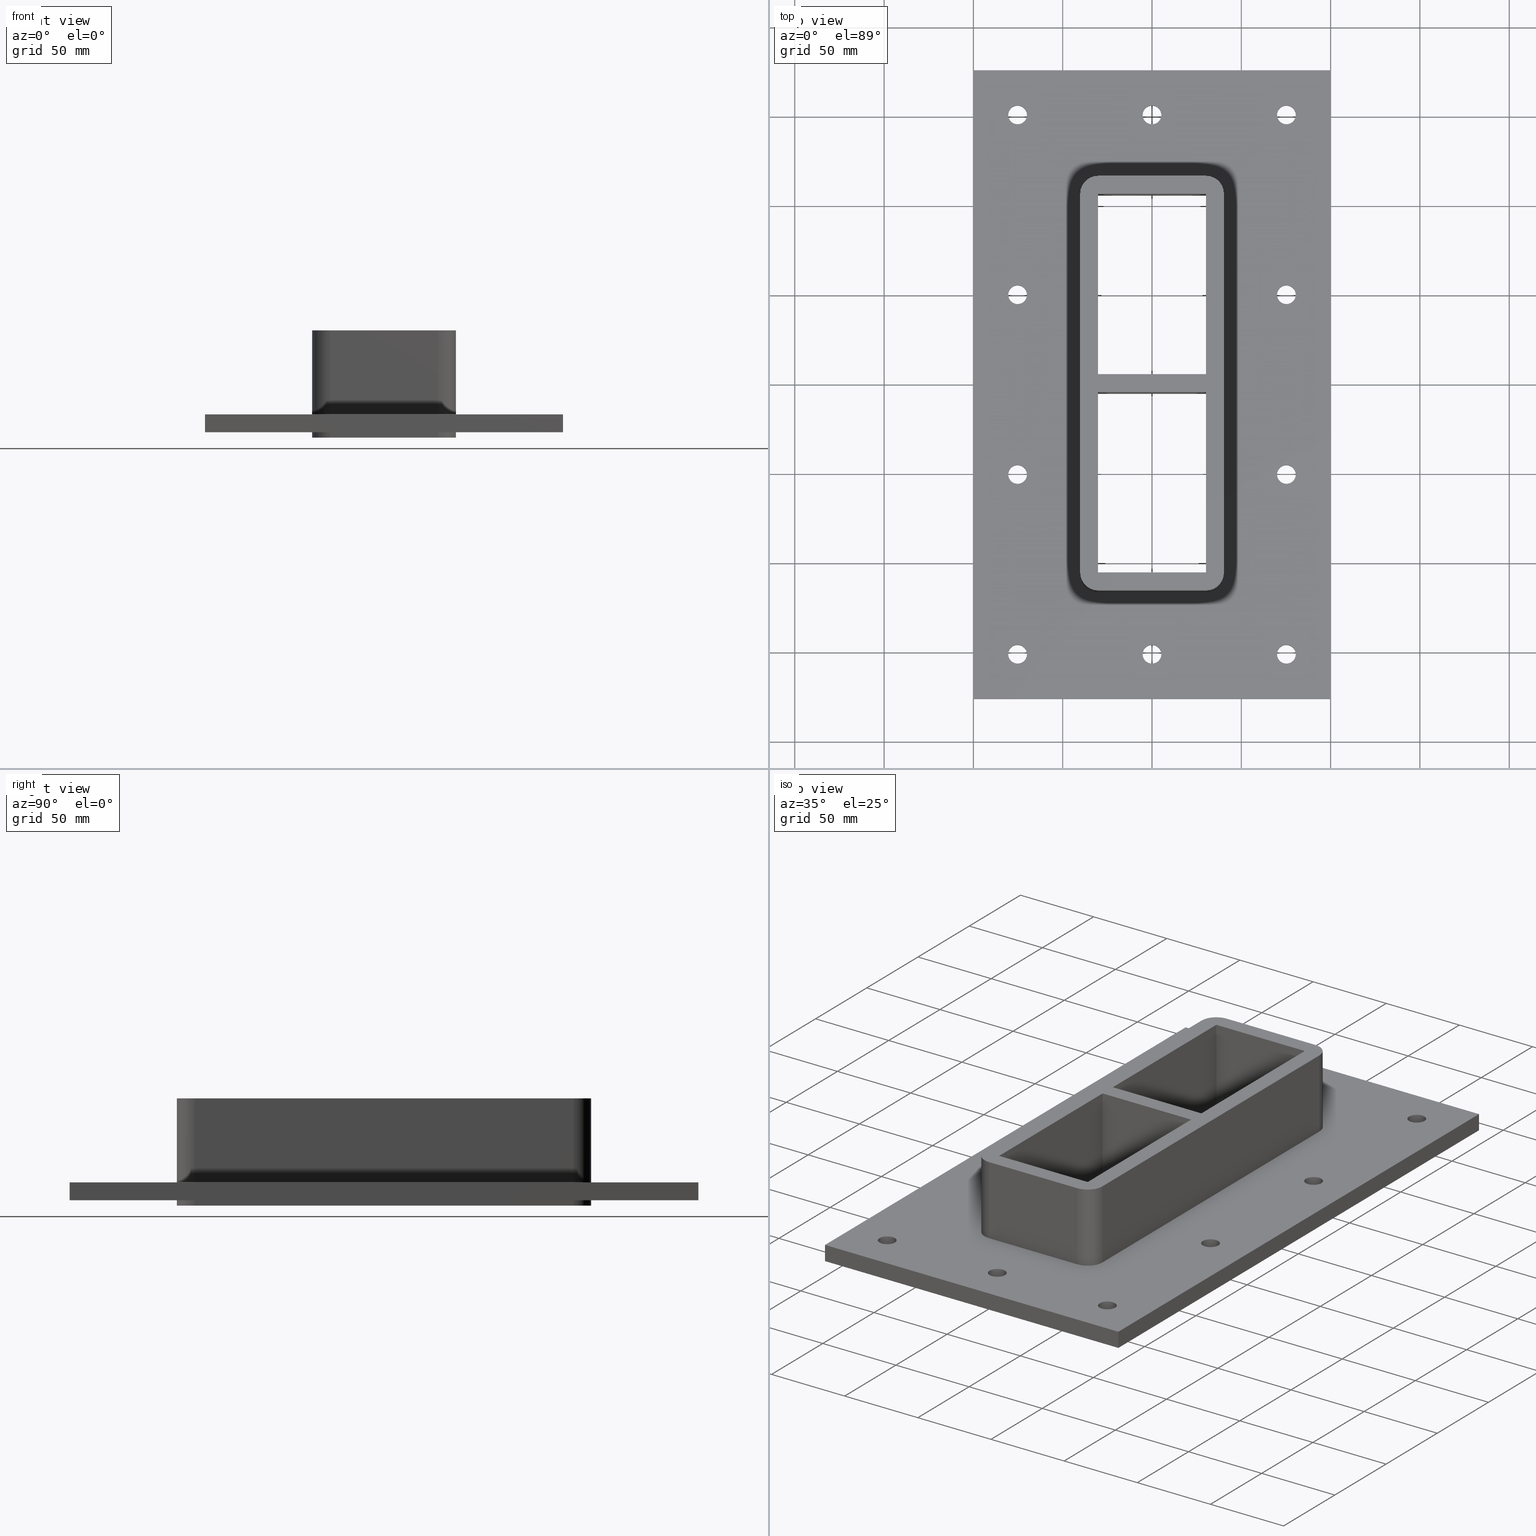
[diagram: canonical four-view strip — front | top / right | iso, engineering-drawing reading convention]
A machine part, canonical four-view strip (front | top / right | iso — engineering-drawing reading convention). The complete STEP part file that produces these views, byte-faithful:
ISO-10303-21;
HEADER;
/****************************************************************
 * Generated by software with PDElib inside                    *
 * PDElib Version v51a, created Wed 11/30/2011                  *
 * ITI Transcendata (http://www.transcendata.com/)              *
 ****************************************************************/
FILE_DESCRIPTION((''),'2;1');
FILE_NAME('C:\\Users\\se-milkar\\Desktop\\SFHM GENERATOR\\File dump\\SFHM1+1X1.stp','2017-01-17T17:20:58',(''),(''),'Autodesk Inventor 2013','Autodesk Inventor 2013','');
FILE_SCHEMA(('AUTOMOTIVE_DESIGN { 1 0 10303 214 1 1 1 1 }'));
ENDSEC;
DATA;
#5=APPLICATION_CONTEXT('automotive design');
#6=APPLICATION_PROTOCOL_DEFINITION('International Standard','automotive_design',2001,#5);
#7=PRODUCT_CONTEXT('',#5,'mechanical');
#8=PRODUCT('RTD-FRAME GENERATOR SF-LABB','RTD-FRAME GENERATOR SF-LABB',$,(#7));
#9=PRODUCT_RELATED_PRODUCT_CATEGORY('part',$,(#8));
#10=PRODUCT_DEFINITION_FORMATION('',$,#8);
#11=PRODUCT_DEFINITION_CONTEXT('part definition',#5,'design');
#12=PRODUCT_DEFINITION('',$,#10,#11);
#18=(NAMED_UNIT(*)PLANE_ANGLE_UNIT()SI_UNIT($,.RADIAN.));
#19=DIMENSIONAL_EXPONENTS(0.0,0.0,0.0,0.0,0.0,0.0,0.0);
#20=PLANE_ANGLE_MEASURE_WITH_UNIT(PLANE_ANGLE_MEASURE(0.0174532925),#18);
#24=(CONVERSION_BASED_UNIT('DEGREE',#20)NAMED_UNIT(#19)PLANE_ANGLE_UNIT());
#28=(NAMED_UNIT(*)SI_UNIT($,.STERADIAN.)SOLID_ANGLE_UNIT());
#32=(LENGTH_UNIT()NAMED_UNIT(*)SI_UNIT(.MILLI.,.METRE.));
#34=UNCERTAINTY_MEASURE_WITH_UNIT(LENGTH_MEASURE(0.01),#32,'DISTANCE_ACCURACY_VALUE','');
#36=(GEOMETRIC_REPRESENTATION_CONTEXT(3)GLOBAL_UNCERTAINTY_ASSIGNED_CONTEXT((#34))GLOBAL_UNIT_ASSIGNED_CONTEXT((#24,#28,#32))REPRESENTATION_CONTEXT('None','None'));
#37=AXIS2_PLACEMENT_3D('',#38,#39,#40);
#38=CARTESIAN_POINT('',(0.0,0.0,0.0));
#39=DIRECTION('',(0.0,0.0,1.0));
#40=DIRECTION('',(1.0,0.0,0.0));
#41=SHAPE_REPRESENTATION('',(#37),#36);
#42=PRODUCT_DEFINITION_SHAPE('','',#12);
#43=SHAPE_DEFINITION_REPRESENTATION(#42,#41);
#49=(NAMED_UNIT(*)PLANE_ANGLE_UNIT()SI_UNIT($,.RADIAN.));
#50=DIMENSIONAL_EXPONENTS(0.0,0.0,0.0,0.0,0.0,0.0,0.0);
#51=PLANE_ANGLE_MEASURE_WITH_UNIT(PLANE_ANGLE_MEASURE(0.0174532925),#49);
#55=(CONVERSION_BASED_UNIT('DEGREE',#51)NAMED_UNIT(#50)PLANE_ANGLE_UNIT());
#59=(NAMED_UNIT(*)SI_UNIT($,.STERADIAN.)SOLID_ANGLE_UNIT());
#63=(LENGTH_UNIT()NAMED_UNIT(*)SI_UNIT(.MILLI.,.METRE.));
#65=UNCERTAINTY_MEASURE_WITH_UNIT(LENGTH_MEASURE(0.000001),#63,'DISTANCE_ACCURACY_VALUE','');
#67=(GEOMETRIC_REPRESENTATION_CONTEXT(3)GLOBAL_UNCERTAINTY_ASSIGNED_CONTEXT((#65))GLOBAL_UNIT_ASSIGNED_CONTEXT((#55,#59,#63))REPRESENTATION_CONTEXT('','3D'));
#68=CARTESIAN_POINT('',(1.776357E-014,-151.0,-426.51709366032583));
#69=DIRECTION('',(0.0,0.0,1.0));
#70=DIRECTION('',(1.0,0.0,0.0));
#71=AXIS2_PLACEMENT_3D('',#68,#69,#70);
#72=CYLINDRICAL_SURFACE('',#71,5.25);
#73=CARTESIAN_POINT('',(-5.249999999999986,-151.0,-27.000000000000028));
#74=VERTEX_POINT('',#73);
#75=CARTESIAN_POINT('',(1.776357E-014,-151.0,-27.000000000000028));
#76=DIRECTION('',(0.0,0.0,1.0));
#77=DIRECTION('',(1.0,0.0,0.0));
#78=AXIS2_PLACEMENT_3D('',#75,#76,#77);
#79=CIRCLE('',#78,5.25);
#80=EDGE_CURVE('',#74,#74,#79,.T.);
#81=ORIENTED_EDGE('',*,*,#80,.F.);
#82=EDGE_LOOP('',(#81));
#83=FACE_OUTER_BOUND('',#82,.T.);
#84=CARTESIAN_POINT('',(5.250000000000021,-151.0,-17.0));
#85=VERTEX_POINT('',#84);
#86=CARTESIAN_POINT('',(1.776357E-014,-151.0,-17.000000000000028));
#87=DIRECTION('',(0.0,0.0,-1.0));
#88=DIRECTION('',(1.0,0.0,0.0));
#89=AXIS2_PLACEMENT_3D('',#86,#87,#88);
#90=CIRCLE('',#89,5.25);
#91=EDGE_CURVE('',#85,#85,#90,.T.);
#92=ORIENTED_EDGE('',*,*,#91,.F.);
#93=EDGE_LOOP('',(#92));
#94=FACE_BOUND('',#93,.T.);
#95=ADVANCED_FACE('',(#83,#94),#72,.F.);
#96=CARTESIAN_POINT('',(-8.881784E-015,151.00000000000003,-426.51709366032583));
#97=DIRECTION('',(0.0,0.0,1.0));
#98=DIRECTION('',(1.0,0.0,0.0));
#99=AXIS2_PLACEMENT_3D('',#96,#97,#98);
#100=CYLINDRICAL_SURFACE('',#99,5.25);
#101=CARTESIAN_POINT('',(-5.250000000000004,151.00000000000003,-27.000000000000028));
#102=VERTEX_POINT('',#101);
#103=CARTESIAN_POINT('',(-8.881784E-015,151.00000000000003,-27.000000000000028));
#104=DIRECTION('',(0.0,0.0,1.0));
#105=DIRECTION('',(1.0,0.0,0.0));
#106=AXIS2_PLACEMENT_3D('',#103,#104,#105);
#107=CIRCLE('',#106,5.25);
#108=EDGE_CURVE('',#102,#102,#107,.T.);
#109=ORIENTED_EDGE('',*,*,#108,.F.);
#110=EDGE_LOOP('',(#109));
#111=FACE_OUTER_BOUND('',#110,.T.);
#112=CARTESIAN_POINT('',(5.249999999999995,151.00000000000003,-17.0));
#113=VERTEX_POINT('',#112);
#114=CARTESIAN_POINT('',(-8.881784E-015,151.00000000000003,-17.000000000000028));
#115=DIRECTION('',(0.0,0.0,-1.0));
#116=DIRECTION('',(1.0,0.0,0.0));
#117=AXIS2_PLACEMENT_3D('',#114,#115,#116);
#118=CIRCLE('',#117,5.25);
#119=EDGE_CURVE('',#113,#113,#118,.T.);
#120=ORIENTED_EDGE('',*,*,#119,.F.);
#121=EDGE_LOOP('',(#120));
#122=FACE_BOUND('',#121,.T.);
#123=ADVANCED_FACE('',(#111,#122),#100,.F.);
#124=CARTESIAN_POINT('',(75.25,-50.333333333333329,-426.51709366032583));
#125=DIRECTION('',(0.0,0.0,1.0));
#126=DIRECTION('',(1.0,0.0,0.0));
#127=AXIS2_PLACEMENT_3D('',#124,#125,#126);
#128=CYLINDRICAL_SURFACE('',#127,5.25);
#129=CARTESIAN_POINT('',(70.0,-50.333333333333329,-27.000000000000028));
#130=VERTEX_POINT('',#129);
#131=CARTESIAN_POINT('',(75.25,-50.333333333333329,-27.000000000000028));
#132=DIRECTION('',(0.0,0.0,1.0));
#133=DIRECTION('',(1.0,0.0,0.0));
#134=AXIS2_PLACEMENT_3D('',#131,#132,#133);
#135=CIRCLE('',#134,5.25);
#136=EDGE_CURVE('',#130,#130,#135,.T.);
#137=ORIENTED_EDGE('',*,*,#136,.F.);
#138=EDGE_LOOP('',(#137));
#139=FACE_OUTER_BOUND('',#138,.T.);
#140=CARTESIAN_POINT('',(80.5,-50.333333333333329,-17.0));
#141=VERTEX_POINT('',#140);
#142=CARTESIAN_POINT('',(75.25,-50.333333333333329,-17.000000000000028));
#143=DIRECTION('',(0.0,0.0,-1.0));
#144=DIRECTION('',(1.0,0.0,0.0));
#145=AXIS2_PLACEMENT_3D('',#142,#143,#144);
#146=CIRCLE('',#145,5.25);
#147=EDGE_CURVE('',#141,#141,#146,.T.);
#148=ORIENTED_EDGE('',*,*,#147,.F.);
#149=EDGE_LOOP('',(#148));
#150=FACE_BOUND('',#149,.T.);
#151=ADVANCED_FACE('',(#139,#150),#128,.F.);
#152=CARTESIAN_POINT('',(75.249999999999986,50.33333333333335,-426.51709366032583));
#153=DIRECTION('',(0.0,0.0,1.0));
#154=DIRECTION('',(1.0,0.0,0.0));
#155=AXIS2_PLACEMENT_3D('',#152,#153,#154);
#156=CYLINDRICAL_SURFACE('',#155,5.25);
#157=CARTESIAN_POINT('',(69.999999999999986,50.33333333333335,-27.000000000000028));
#158=VERTEX_POINT('',#157);
#159=CARTESIAN_POINT('',(75.249999999999986,50.33333333333335,-27.000000000000028));
#160=DIRECTION('',(0.0,0.0,1.0));
#161=DIRECTION('',(1.0,0.0,0.0));
#162=AXIS2_PLACEMENT_3D('',#159,#160,#161);
#163=CIRCLE('',#162,5.25);
#164=EDGE_CURVE('',#158,#158,#163,.T.);
#165=ORIENTED_EDGE('',*,*,#164,.F.);
#166=EDGE_LOOP('',(#165));
#167=FACE_OUTER_BOUND('',#166,.T.);
#168=CARTESIAN_POINT('',(80.499999999999986,50.33333333333335,-17.0));
#169=VERTEX_POINT('',#168);
#170=CARTESIAN_POINT('',(75.249999999999986,50.33333333333335,-17.000000000000028));
#171=DIRECTION('',(0.0,0.0,-1.0));
#172=DIRECTION('',(1.0,0.0,0.0));
#173=AXIS2_PLACEMENT_3D('',#170,#171,#172);
#174=CIRCLE('',#173,5.25);
#175=EDGE_CURVE('',#169,#169,#174,.T.);
#176=ORIENTED_EDGE('',*,*,#175,.F.);
#177=EDGE_LOOP('',(#176));
#178=FACE_BOUND('',#177,.T.);
#179=ADVANCED_FACE('',(#167,#178),#156,.F.);
#180=CARTESIAN_POINT('',(-75.25,50.333333333333371,-426.51709366032583));
#181=DIRECTION('',(0.0,0.0,1.0));
#182=DIRECTION('',(1.0,0.0,0.0));
#183=AXIS2_PLACEMENT_3D('',#180,#181,#182);
#184=CYLINDRICAL_SURFACE('',#183,5.25);
#185=CARTESIAN_POINT('',(-80.499999999999986,50.333333333333371,-27.000000000000028));
#186=VERTEX_POINT('',#185);
#187=CARTESIAN_POINT('',(-75.25,50.333333333333371,-27.000000000000028));
#188=DIRECTION('',(0.0,0.0,1.0));
#189=DIRECTION('',(1.0,0.0,0.0));
#190=AXIS2_PLACEMENT_3D('',#187,#188,#189);
#191=CIRCLE('',#190,5.25);
#192=EDGE_CURVE('',#186,#186,#191,.T.);
#193=ORIENTED_EDGE('',*,*,#192,.F.);
#194=EDGE_LOOP('',(#193));
#195=FACE_OUTER_BOUND('',#194,.T.);
#196=CARTESIAN_POINT('',(-69.999999999999986,50.333333333333371,-17.0));
#197=VERTEX_POINT('',#196);
#198=CARTESIAN_POINT('',(-75.25,50.333333333333371,-17.000000000000028));
#199=DIRECTION('',(0.0,0.0,-1.0));
#200=DIRECTION('',(1.0,0.0,0.0));
#201=AXIS2_PLACEMENT_3D('',#198,#199,#200);
#202=CIRCLE('',#201,5.25);
#203=EDGE_CURVE('',#197,#197,#202,.T.);
#204=ORIENTED_EDGE('',*,*,#203,.F.);
#205=EDGE_LOOP('',(#204));
#206=FACE_BOUND('',#205,.T.);
#207=ADVANCED_FACE('',(#195,#206),#184,.F.);
#208=CARTESIAN_POINT('',(-75.249999999999972,-50.333333333333314,-426.51709366032583));
#209=DIRECTION('',(0.0,0.0,1.0));
#210=DIRECTION('',(1.0,0.0,0.0));
#211=AXIS2_PLACEMENT_3D('',#208,#209,#210);
#212=CYLINDRICAL_SURFACE('',#211,5.25);
#213=CARTESIAN_POINT('',(-80.499999999999972,-50.333333333333314,-27.000000000000028));
#214=VERTEX_POINT('',#213);
#215=CARTESIAN_POINT('',(-75.249999999999972,-50.333333333333314,-27.000000000000028));
#216=DIRECTION('',(0.0,0.0,1.0));
#217=DIRECTION('',(1.0,0.0,0.0));
#218=AXIS2_PLACEMENT_3D('',#215,#216,#217);
#219=CIRCLE('',#218,5.25);
#220=EDGE_CURVE('',#214,#214,#219,.T.);
#221=ORIENTED_EDGE('',*,*,#220,.F.);
#222=EDGE_LOOP('',(#221));
#223=FACE_OUTER_BOUND('',#222,.T.);
#224=CARTESIAN_POINT('',(-69.999999999999972,-50.333333333333314,-17.0));
#225=VERTEX_POINT('',#224);
#226=CARTESIAN_POINT('',(-75.249999999999972,-50.333333333333314,-17.000000000000028));
#227=DIRECTION('',(0.0,0.0,-1.0));
#228=DIRECTION('',(1.0,0.0,0.0));
#229=AXIS2_PLACEMENT_3D('',#226,#227,#228);
#230=CIRCLE('',#229,5.25);
#231=EDGE_CURVE('',#225,#225,#230,.T.);
#232=ORIENTED_EDGE('',*,*,#231,.F.);
#233=EDGE_LOOP('',(#232));
#234=FACE_BOUND('',#233,.T.);
#235=ADVANCED_FACE('',(#223,#234),#212,.F.);
#236=CARTESIAN_POINT('',(-75.250000000000014,151.00000000000003,-426.51709366032583));
#237=DIRECTION('',(0.0,0.0,1.0));
#238=DIRECTION('',(1.0,0.0,0.0));
#239=AXIS2_PLACEMENT_3D('',#236,#237,#238);
#240=CYLINDRICAL_SURFACE('',#239,5.25);
#241=CARTESIAN_POINT('',(-80.5,151.00000000000003,-27.000000000000028));
#242=VERTEX_POINT('',#241);
#243=CARTESIAN_POINT('',(-75.250000000000014,151.00000000000003,-27.000000000000028));
#244=DIRECTION('',(0.0,0.0,1.0));
#245=DIRECTION('',(1.0,0.0,0.0));
#246=AXIS2_PLACEMENT_3D('',#243,#244,#245);
#247=CIRCLE('',#246,5.25);
#248=EDGE_CURVE('',#242,#242,#247,.T.);
#249=ORIENTED_EDGE('',*,*,#248,.F.);
#250=EDGE_LOOP('',(#249));
#251=FACE_OUTER_BOUND('',#250,.T.);
#252=CARTESIAN_POINT('',(-70.000000000000014,151.00000000000003,-17.0));
#253=VERTEX_POINT('',#252);
#254=CARTESIAN_POINT('',(-75.250000000000014,151.00000000000003,-17.000000000000028));
#255=DIRECTION('',(0.0,0.0,-1.0));
#256=DIRECTION('',(1.0,0.0,0.0));
#257=AXIS2_PLACEMENT_3D('',#254,#255,#256);
#258=CIRCLE('',#257,5.25);
#259=EDGE_CURVE('',#253,#253,#258,.T.);
#260=ORIENTED_EDGE('',*,*,#259,.F.);
#261=EDGE_LOOP('',(#260));
#262=FACE_BOUND('',#261,.T.);
#263=ADVANCED_FACE('',(#251,#262),#240,.F.);
#264=CARTESIAN_POINT('',(75.249999999999972,151.00000000000003,-426.51709366032583));
#265=DIRECTION('',(0.0,0.0,1.0));
#266=DIRECTION('',(1.0,0.0,0.0));
#267=AXIS2_PLACEMENT_3D('',#264,#265,#266);
#268=CYLINDRICAL_SURFACE('',#267,5.25);
#269=CARTESIAN_POINT('',(69.999999999999972,151.00000000000003,-27.000000000000028));
#270=VERTEX_POINT('',#269);
#271=CARTESIAN_POINT('',(75.249999999999972,151.00000000000003,-27.000000000000028));
#272=DIRECTION('',(0.0,0.0,1.0));
#273=DIRECTION('',(1.0,0.0,0.0));
#274=AXIS2_PLACEMENT_3D('',#271,#272,#273);
#275=CIRCLE('',#274,5.25);
#276=EDGE_CURVE('',#270,#270,#275,.T.);
#277=ORIENTED_EDGE('',*,*,#276,.F.);
#278=EDGE_LOOP('',(#277));
#279=FACE_OUTER_BOUND('',#278,.T.);
#280=CARTESIAN_POINT('',(80.499999999999972,151.00000000000003,-17.0));
#281=VERTEX_POINT('',#280);
#282=CARTESIAN_POINT('',(75.249999999999972,151.00000000000003,-17.000000000000028));
#283=DIRECTION('',(0.0,0.0,-1.0));
#284=DIRECTION('',(1.0,0.0,0.0));
#285=AXIS2_PLACEMENT_3D('',#282,#283,#284);
#286=CIRCLE('',#285,5.25);
#287=EDGE_CURVE('',#281,#281,#286,.T.);
#288=ORIENTED_EDGE('',*,*,#287,.F.);
#289=EDGE_LOOP('',(#288));
#290=FACE_BOUND('',#289,.T.);
#291=ADVANCED_FACE('',(#279,#290),#268,.F.);
#292=CARTESIAN_POINT('',(75.250000000000028,-151.0,-426.51709366032583));
#293=DIRECTION('',(0.0,0.0,1.0));
#294=DIRECTION('',(1.0,0.0,0.0));
#295=AXIS2_PLACEMENT_3D('',#292,#293,#294);
#296=CYLINDRICAL_SURFACE('',#295,5.25);
#297=CARTESIAN_POINT('',(70.000000000000014,-151.0,-27.000000000000028));
#298=VERTEX_POINT('',#297);
#299=CARTESIAN_POINT('',(75.250000000000028,-151.0,-27.000000000000028));
#300=DIRECTION('',(0.0,0.0,1.0));
#301=DIRECTION('',(1.0,0.0,0.0));
#302=AXIS2_PLACEMENT_3D('',#299,#300,#301);
#303=CIRCLE('',#302,5.25);
#304=EDGE_CURVE('',#298,#298,#303,.T.);
#305=ORIENTED_EDGE('',*,*,#304,.F.);
#306=EDGE_LOOP('',(#305));
#307=FACE_OUTER_BOUND('',#306,.T.);
#308=CARTESIAN_POINT('',(80.500000000000028,-151.0,-17.0));
#309=VERTEX_POINT('',#308);
#310=CARTESIAN_POINT('',(75.250000000000028,-151.0,-17.000000000000028));
#311=DIRECTION('',(0.0,0.0,-1.0));
#312=DIRECTION('',(1.0,0.0,0.0));
#313=AXIS2_PLACEMENT_3D('',#310,#311,#312);
#314=CIRCLE('',#313,5.25);
#315=EDGE_CURVE('',#309,#309,#314,.T.);
#316=ORIENTED_EDGE('',*,*,#315,.F.);
#317=EDGE_LOOP('',(#316));
#318=FACE_BOUND('',#317,.T.);
#319=ADVANCED_FACE('',(#307,#318),#296,.F.);
#320=CARTESIAN_POINT('',(-75.249999999999957,-151.0,-426.51709366032583));
#321=DIRECTION('',(0.0,0.0,1.0));
#322=DIRECTION('',(1.0,0.0,0.0));
#323=AXIS2_PLACEMENT_3D('',#320,#321,#322);
#324=CYLINDRICAL_SURFACE('',#323,5.25);
#325=CARTESIAN_POINT('',(-80.499999999999957,-151.0,-27.000000000000028));
#326=VERTEX_POINT('',#325);
#327=CARTESIAN_POINT('',(-75.249999999999957,-151.0,-27.000000000000028));
#328=DIRECTION('',(0.0,0.0,1.0));
#329=DIRECTION('',(1.0,0.0,0.0));
#330=AXIS2_PLACEMENT_3D('',#327,#328,#329);
#331=CIRCLE('',#330,5.25);
#332=EDGE_CURVE('',#326,#326,#331,.T.);
#333=ORIENTED_EDGE('',*,*,#332,.F.);
#334=EDGE_LOOP('',(#333));
#335=FACE_OUTER_BOUND('',#334,.T.);
#336=CARTESIAN_POINT('',(-69.999999999999957,-151.0,-17.0));
#337=VERTEX_POINT('',#336);
#338=CARTESIAN_POINT('',(-75.249999999999957,-151.0,-17.000000000000028));
#339=DIRECTION('',(0.0,0.0,-1.0));
#340=DIRECTION('',(1.0,0.0,0.0));
#341=AXIS2_PLACEMENT_3D('',#338,#339,#340);
#342=CIRCLE('',#341,5.25);
#343=EDGE_CURVE('',#337,#337,#342,.T.);
#344=ORIENTED_EDGE('',*,*,#343,.F.);
#345=EDGE_LOOP('',(#344));
#346=FACE_BOUND('',#345,.T.);
#347=ADVANCED_FACE('',(#335,#346),#324,.F.);
#348=CARTESIAN_POINT('',(-100.25000000000004,176.0,-27.0));
#349=DIRECTION('',(-1.0,0.0,0.0));
#350=DIRECTION('',(0.0,-1.0,0.0));
#351=AXIS2_PLACEMENT_3D('',#348,#349,#350);
#352=PLANE('',#351);
#353=CARTESIAN_POINT('',(-100.24999999999997,-176.0,-27.0));
#354=VERTEX_POINT('',#353);
#355=CARTESIAN_POINT('',(-100.25000000000004,175.99999999999997,-27.0));
#356=VERTEX_POINT('',#355);
#357=CARTESIAN_POINT('',(-100.24999999999997,-176.0,-27.0));
#358=DIRECTION('',(0.0,1.0,0.0));
#359=VECTOR('',#358,352.0);
#360=LINE('',#357,#359);
#361=EDGE_CURVE('',#354,#356,#360,.T.);
#362=ORIENTED_EDGE('',*,*,#361,.F.);
#363=CARTESIAN_POINT('',(-100.24999999999994,-176.0,-17.0));
#364=VERTEX_POINT('',#363);
#365=CARTESIAN_POINT('',(-100.24999999999997,-176.0,-27.0));
#366=DIRECTION('',(0.0,0.0,1.0));
#367=VECTOR('',#366,10.0);
#368=LINE('',#365,#367);
#369=EDGE_CURVE('',#354,#364,#368,.T.);
#370=ORIENTED_EDGE('',*,*,#369,.T.);
#371=CARTESIAN_POINT('',(-100.25000000000003,176.0,-17.0));
#372=VERTEX_POINT('',#371);
#373=CARTESIAN_POINT('',(-100.25000000000004,176.0,-17.0));
#374=DIRECTION('',(0.0,-1.0,0.0));
#375=VECTOR('',#374,352.0);
#376=LINE('',#373,#375);
#377=EDGE_CURVE('',#372,#364,#376,.T.);
#378=ORIENTED_EDGE('',*,*,#377,.F.);
#379=CARTESIAN_POINT('',(-100.25000000000004,175.99999999999997,-27.0));
#380=DIRECTION('',(0.0,0.0,1.0));
#381=VECTOR('',#380,10.0);
#382=LINE('',#379,#381);
#383=EDGE_CURVE('',#356,#372,#382,.T.);
#384=ORIENTED_EDGE('',*,*,#383,.F.);
#385=EDGE_LOOP('',(#362,#370,#378,#384));
#386=FACE_OUTER_BOUND('',#385,.T.);
#387=ADVANCED_FACE('',(#386),#352,.T.);
#388=CARTESIAN_POINT('',(100.24999999999997,176.00000000000006,-27.0));
#389=DIRECTION('',(0.0,1.0,0.0));
#390=DIRECTION('',(-1.0,0.0,0.0));
#391=AXIS2_PLACEMENT_3D('',#388,#389,#390);
#392=PLANE('',#391);
#393=CARTESIAN_POINT('',(100.24999999999997,176.00000000000006,-27.0));
#394=VERTEX_POINT('',#393);
#395=CARTESIAN_POINT('',(-100.25000000000004,175.99999999999997,-27.0));
#396=DIRECTION('',(1.0,0.0,0.0));
#397=VECTOR('',#396,200.5);
#398=LINE('',#395,#397);
#399=EDGE_CURVE('',#356,#394,#398,.T.);
#400=ORIENTED_EDGE('',*,*,#399,.F.);
#401=ORIENTED_EDGE('',*,*,#383,.T.);
#402=CARTESIAN_POINT('',(100.24999999999997,176.0,-17.0));
#403=VERTEX_POINT('',#402);
#404=CARTESIAN_POINT('',(100.24999999999996,176.00000000000006,-17.0));
#405=DIRECTION('',(-1.0,0.0,0.0));
#406=VECTOR('',#405,200.5);
#407=LINE('',#404,#406);
#408=EDGE_CURVE('',#403,#372,#407,.T.);
#409=ORIENTED_EDGE('',*,*,#408,.F.);
#410=CARTESIAN_POINT('',(100.24999999999997,176.00000000000006,-27.0));
#411=DIRECTION('',(0.0,0.0,1.0));
#412=VECTOR('',#411,10.0);
#413=LINE('',#410,#412);
#414=EDGE_CURVE('',#394,#403,#413,.T.);
#415=ORIENTED_EDGE('',*,*,#414,.F.);
#416=EDGE_LOOP('',(#400,#401,#409,#415));
#417=FACE_OUTER_BOUND('',#416,.T.);
#418=ADVANCED_FACE('',(#417),#392,.T.);
#419=CARTESIAN_POINT('',(100.25000000000003,-175.99999999999997,-27.0));
#420=DIRECTION('',(1.0,0.0,0.0));
#421=DIRECTION('',(0.0,1.0,0.0));
#422=AXIS2_PLACEMENT_3D('',#419,#420,#421);
#423=PLANE('',#422);
#424=CARTESIAN_POINT('',(100.25000000000003,-176.0,-27.0));
#425=VERTEX_POINT('',#424);
#426=CARTESIAN_POINT('',(100.24999999999997,176.00000000000006,-27.0));
#427=DIRECTION('',(0.0,-1.0,0.0));
#428=VECTOR('',#427,352.0);
#429=LINE('',#426,#428);
#430=EDGE_CURVE('',#394,#425,#429,.T.);
#431=ORIENTED_EDGE('',*,*,#430,.F.);
#432=ORIENTED_EDGE('',*,*,#414,.T.);
#433=CARTESIAN_POINT('',(100.25000000000003,-176.0,-17.0));
#434=VERTEX_POINT('',#433);
#435=CARTESIAN_POINT('',(100.25000000000003,-175.99999999999994,-17.0));
#436=DIRECTION('',(0.0,1.0,0.0));
#437=VECTOR('',#436,352.0);
#438=LINE('',#435,#437);
#439=EDGE_CURVE('',#434,#403,#438,.T.);
#440=ORIENTED_EDGE('',*,*,#439,.F.);
#441=CARTESIAN_POINT('',(100.25000000000003,-176.0,-27.0));
#442=DIRECTION('',(0.0,0.0,1.0));
#443=VECTOR('',#442,10.0);
#444=LINE('',#441,#443);
#445=EDGE_CURVE('',#425,#434,#444,.T.);
#446=ORIENTED_EDGE('',*,*,#445,.F.);
#447=EDGE_LOOP('',(#431,#432,#440,#446));
#448=FACE_OUTER_BOUND('',#447,.T.);
#449=ADVANCED_FACE('',(#448),#423,.T.);
#450=CARTESIAN_POINT('',(-100.24999999999994,-176.0,-27.0));
#451=DIRECTION('',(0.0,-1.0,0.0));
#452=DIRECTION('',(1.0,0.0,0.0));
#453=AXIS2_PLACEMENT_3D('',#450,#451,#452);
#454=PLANE('',#453);
#455=CARTESIAN_POINT('',(100.25000000000003,-176.0,-27.0));
#456=DIRECTION('',(-1.0,0.0,0.0));
#457=VECTOR('',#456,200.49999999999997);
#458=LINE('',#455,#457);
#459=EDGE_CURVE('',#425,#354,#458,.T.);
#460=ORIENTED_EDGE('',*,*,#459,.F.);
#461=ORIENTED_EDGE('',*,*,#445,.T.);
#462=CARTESIAN_POINT('',(-100.24999999999994,-176.0,-17.0));
#463=DIRECTION('',(1.0,0.0,0.0));
#464=VECTOR('',#463,200.49999999999997);
#465=LINE('',#462,#464);
#466=EDGE_CURVE('',#364,#434,#465,.T.);
#467=ORIENTED_EDGE('',*,*,#466,.F.);
#468=ORIENTED_EDGE('',*,*,#369,.F.);
#469=EDGE_LOOP('',(#460,#461,#467,#468));
#470=FACE_OUTER_BOUND('',#469,.T.);
#471=ADVANCED_FACE('',(#470),#454,.T.);
#472=CARTESIAN_POINT('',(-3.858151E-015,1.517539E-014,-17.0));
#473=DIRECTION('',(0.0,0.0,1.0));
#474=DIRECTION('',(1.0,0.0,0.0));
#475=AXIS2_PLACEMENT_3D('',#472,#473,#474);
#476=PLANE('',#475);
#477=ORIENTED_EDGE('',*,*,#466,.T.);
#478=ORIENTED_EDGE('',*,*,#439,.T.);
#479=ORIENTED_EDGE('',*,*,#408,.T.);
#480=ORIENTED_EDGE('',*,*,#377,.T.);
#481=EDGE_LOOP('',(#477,#478,#479,#480));
#482=FACE_OUTER_BOUND('',#481,.T.);
#483=ORIENTED_EDGE('',*,*,#91,.T.);
#484=EDGE_LOOP('',(#483));
#485=FACE_BOUND('',#484,.T.);
#486=ORIENTED_EDGE('',*,*,#119,.T.);
#487=EDGE_LOOP('',(#486));
#488=FACE_BOUND('',#487,.T.);
#489=ORIENTED_EDGE('',*,*,#147,.T.);
#490=EDGE_LOOP('',(#489));
#491=FACE_BOUND('',#490,.T.);
#492=ORIENTED_EDGE('',*,*,#175,.T.);
#493=EDGE_LOOP('',(#492));
#494=FACE_BOUND('',#493,.T.);
#495=ORIENTED_EDGE('',*,*,#203,.T.);
#496=EDGE_LOOP('',(#495));
#497=FACE_BOUND('',#496,.T.);
#498=ORIENTED_EDGE('',*,*,#231,.T.);
#499=EDGE_LOOP('',(#498));
#500=FACE_BOUND('',#499,.T.);
#501=ORIENTED_EDGE('',*,*,#259,.T.);
#502=EDGE_LOOP('',(#501));
#503=FACE_BOUND('',#502,.T.);
#504=ORIENTED_EDGE('',*,*,#287,.T.);
#505=EDGE_LOOP('',(#504));
#506=FACE_BOUND('',#505,.T.);
#507=ORIENTED_EDGE('',*,*,#315,.T.);
#508=EDGE_LOOP('',(#507));
#509=FACE_BOUND('',#508,.T.);
#510=ORIENTED_EDGE('',*,*,#343,.T.);
#511=EDGE_LOOP('',(#510));
#512=FACE_BOUND('',#511,.T.);
#513=CARTESIAN_POINT('',(40.249999999999993,106.00000000000001,-17.0));
#514=VERTEX_POINT('',#513);
#515=CARTESIAN_POINT('',(30.249999999999989,116.00000000000001,-17.0));
#516=VERTEX_POINT('',#515);
#517=CARTESIAN_POINT('',(30.24999999999995,106.00000000000007,-17.0));
#518=DIRECTION('',(0.0,0.0,1.0));
#519=DIRECTION('',(0.707106781186547,0.707106781186547,0.0));
#520=AXIS2_PLACEMENT_3D('',#517,#518,#519);
#521=CIRCLE('',#520,9.999999999999998);
#522=EDGE_CURVE('',#514,#516,#521,.T.);
#523=ORIENTED_EDGE('',*,*,#522,.F.);
#524=CARTESIAN_POINT('',(40.250000000000014,-106.00000000000001,-17.0));
#525=VERTEX_POINT('',#524);
#526=CARTESIAN_POINT('',(40.249999999999986,-106.00000000000001,-17.0));
#527=DIRECTION('',(0.0,1.0,0.0));
#528=VECTOR('',#527,212.00000000000006);
#529=LINE('',#526,#528);
#530=EDGE_CURVE('',#525,#514,#529,.T.);
#531=ORIENTED_EDGE('',*,*,#530,.F.);
#532=CARTESIAN_POINT('',(30.250000000000018,-116.00000000000001,-17.0));
#533=VERTEX_POINT('',#532);
#534=CARTESIAN_POINT('',(30.249999999999986,-105.99999999999994,-17.0));
#535=DIRECTION('',(0.0,0.0,1.0));
#536=DIRECTION('',(0.707106781186547,-0.707106781186547,0.0));
#537=AXIS2_PLACEMENT_3D('',#534,#535,#536);
#538=CIRCLE('',#537,9.999999999999998);
#539=EDGE_CURVE('',#533,#525,#538,.T.);
#540=ORIENTED_EDGE('',*,*,#539,.F.);
#541=CARTESIAN_POINT('',(-30.249999999999989,-116.00000000000001,-17.0));
#542=VERTEX_POINT('',#541);
#543=CARTESIAN_POINT('',(-30.249999999999989,-115.99999999999994,-17.0));
#544=DIRECTION('',(1.0,0.0,0.0));
#545=VECTOR('',#544,60.500000000000014);
#546=LINE('',#543,#545);
#547=EDGE_CURVE('',#542,#533,#546,.T.);
#548=ORIENTED_EDGE('',*,*,#547,.F.);
#549=CARTESIAN_POINT('',(-40.25,-106.00000000000001,-17.0));
#550=VERTEX_POINT('',#549);
#551=CARTESIAN_POINT('',(-30.249999999999989,-105.99999999999994,-17.0));
#552=DIRECTION('',(0.0,0.0,1.0));
#553=DIRECTION('',(-0.707106781186547,-0.707106781186548,0.0));
#554=AXIS2_PLACEMENT_3D('',#551,#552,#553);
#555=CIRCLE('',#554,9.999999999999998);
#556=EDGE_CURVE('',#550,#542,#555,.T.);
#557=ORIENTED_EDGE('',*,*,#556,.F.);
#558=CARTESIAN_POINT('',(-40.250000000000021,106.00000000000001,-17.0));
#559=VERTEX_POINT('',#558);
#560=CARTESIAN_POINT('',(-40.250000000000057,106.00000000000001,-17.0));
#561=DIRECTION('',(0.0,-1.0,0.0));
#562=VECTOR('',#561,212.00000000000006);
#563=LINE('',#560,#562);
#564=EDGE_CURVE('',#559,#550,#563,.T.);
#565=ORIENTED_EDGE('',*,*,#564,.F.);
#566=CARTESIAN_POINT('',(-30.250000000000018,116.00000000000001,-17.0));
#567=VERTEX_POINT('',#566);
#568=CARTESIAN_POINT('',(-30.250000000000053,106.00000000000007,-17.0));
#569=DIRECTION('',(0.0,0.0,1.0));
#570=DIRECTION('',(-0.707106781186548,0.707106781186547,0.0));
#571=AXIS2_PLACEMENT_3D('',#568,#569,#570);
#572=CIRCLE('',#571,10.0);
#573=EDGE_CURVE('',#567,#559,#572,.T.);
#574=ORIENTED_EDGE('',*,*,#573,.F.);
#575=CARTESIAN_POINT('',(30.249999999999989,116.00000000000007,-17.0));
#576=DIRECTION('',(-1.0,0.0,0.0));
#577=VECTOR('',#576,60.500000000000014);
#578=LINE('',#575,#577);
#579=EDGE_CURVE('',#516,#567,#578,.T.);
#580=ORIENTED_EDGE('',*,*,#579,.F.);
#581=EDGE_LOOP('',(#523,#531,#540,#548,#557,#565,#574,#580));
#582=FACE_BOUND('',#581,.T.);
#583=ADVANCED_FACE('',(#482,#485,#488,#491,#494,#497,#500,#503,#506,#509,#512,#582),#476,.T.);
#584=CARTESIAN_POINT('',(-3.858151E-015,1.517539E-014,-27.0));
#585=DIRECTION('',(0.0,0.0,1.0));
#586=DIRECTION('',(1.0,0.0,0.0));
#587=AXIS2_PLACEMENT_3D('',#584,#585,#586);
#588=PLANE('',#587);
#589=ORIENTED_EDGE('',*,*,#459,.T.);
#590=ORIENTED_EDGE('',*,*,#361,.T.);
#591=ORIENTED_EDGE('',*,*,#399,.T.);
#592=ORIENTED_EDGE('',*,*,#430,.T.);
#593=EDGE_LOOP('',(#589,#590,#591,#592));
#594=FACE_OUTER_BOUND('',#593,.T.);
#595=ORIENTED_EDGE('',*,*,#80,.T.);
#596=EDGE_LOOP('',(#595));
#597=FACE_BOUND('',#596,.T.);
#598=ORIENTED_EDGE('',*,*,#108,.T.);
#599=EDGE_LOOP('',(#598));
#600=FACE_BOUND('',#599,.T.);
#601=ORIENTED_EDGE('',*,*,#136,.T.);
#602=EDGE_LOOP('',(#601));
#603=FACE_BOUND('',#602,.T.);
#604=ORIENTED_EDGE('',*,*,#164,.T.);
#605=EDGE_LOOP('',(#604));
#606=FACE_BOUND('',#605,.T.);
#607=ORIENTED_EDGE('',*,*,#192,.T.);
#608=EDGE_LOOP('',(#607));
#609=FACE_BOUND('',#608,.T.);
#610=ORIENTED_EDGE('',*,*,#220,.T.);
#611=EDGE_LOOP('',(#610));
#612=FACE_BOUND('',#611,.T.);
#613=ORIENTED_EDGE('',*,*,#248,.T.);
#614=EDGE_LOOP('',(#613));
#615=FACE_BOUND('',#614,.T.);
#616=ORIENTED_EDGE('',*,*,#276,.T.);
#617=EDGE_LOOP('',(#616));
#618=FACE_BOUND('',#617,.T.);
#619=ORIENTED_EDGE('',*,*,#304,.T.);
#620=EDGE_LOOP('',(#619));
#621=FACE_BOUND('',#620,.T.);
#622=ORIENTED_EDGE('',*,*,#332,.T.);
#623=EDGE_LOOP('',(#622));
#624=FACE_BOUND('',#623,.T.);
#625=CARTESIAN_POINT('',(30.249999999999989,116.00000000000001,-27.0));
#626=VERTEX_POINT('',#625);
#627=CARTESIAN_POINT('',(40.249999999999993,106.00000000000001,-27.0));
#628=VERTEX_POINT('',#627);
#629=CARTESIAN_POINT('',(30.24999999999995,106.00000000000007,-27.0));
#630=DIRECTION('',(0.0,0.0,-1.0));
#631=DIRECTION('',(0.707106781186547,0.707106781186547,0.0));
#632=AXIS2_PLACEMENT_3D('',#629,#630,#631);
#633=CIRCLE('',#632,9.999999999999998);
#634=EDGE_CURVE('',#626,#628,#633,.T.);
#635=ORIENTED_EDGE('',*,*,#634,.F.);
#636=CARTESIAN_POINT('',(-30.250000000000018,116.00000000000001,-27.0));
#637=VERTEX_POINT('',#636);
#638=CARTESIAN_POINT('',(-30.250000000000025,116.00000000000007,-27.0));
#639=DIRECTION('',(1.0,0.0,0.0));
#640=VECTOR('',#639,60.500000000000014);
#641=LINE('',#638,#640);
#642=EDGE_CURVE('',#637,#626,#641,.T.);
#643=ORIENTED_EDGE('',*,*,#642,.F.);
#644=CARTESIAN_POINT('',(-40.250000000000014,106.00000000000001,-27.0));
#645=VERTEX_POINT('',#644);
#646=CARTESIAN_POINT('',(-30.250000000000053,106.00000000000007,-27.0));
#647=DIRECTION('',(0.0,0.0,-1.0));
#648=DIRECTION('',(-0.707106781186548,0.707106781186547,0.0));
#649=AXIS2_PLACEMENT_3D('',#646,#647,#648);
#650=CIRCLE('',#649,10.0);
#651=EDGE_CURVE('',#645,#637,#650,.T.);
#652=ORIENTED_EDGE('',*,*,#651,.F.);
#653=CARTESIAN_POINT('',(-40.249999999999993,-106.00000000000001,-27.0));
#654=VERTEX_POINT('',#653);
#655=CARTESIAN_POINT('',(-40.249999999999993,-106.00000000000003,-27.0));
#656=DIRECTION('',(0.0,1.0,0.0));
#657=VECTOR('',#656,212.00000000000006);
#658=LINE('',#655,#657);
#659=EDGE_CURVE('',#654,#645,#658,.T.);
#660=ORIENTED_EDGE('',*,*,#659,.F.);
#661=CARTESIAN_POINT('',(-30.249999999999989,-116.00000000000001,-27.0));
#662=VERTEX_POINT('',#661);
#663=CARTESIAN_POINT('',(-30.249999999999989,-105.99999999999994,-27.0));
#664=DIRECTION('',(0.0,0.0,-1.0));
#665=DIRECTION('',(-0.707106781186547,-0.707106781186548,0.0));
#666=AXIS2_PLACEMENT_3D('',#663,#664,#665);
#667=CIRCLE('',#666,9.999999999999998);
#668=EDGE_CURVE('',#662,#654,#667,.T.);
#669=ORIENTED_EDGE('',*,*,#668,.F.);
#670=CARTESIAN_POINT('',(30.250000000000018,-116.00000000000001,-27.0));
#671=VERTEX_POINT('',#670);
#672=CARTESIAN_POINT('',(30.250000000000021,-115.99999999999994,-27.0));
#673=DIRECTION('',(-1.0,0.0,0.0));
#674=VECTOR('',#673,60.500000000000014);
#675=LINE('',#672,#674);
#676=EDGE_CURVE('',#671,#662,#675,.T.);
#677=ORIENTED_EDGE('',*,*,#676,.F.);
#678=CARTESIAN_POINT('',(40.250000000000014,-106.00000000000001,-27.0));
#679=VERTEX_POINT('',#678);
#680=CARTESIAN_POINT('',(30.249999999999986,-105.99999999999994,-27.0));
#681=DIRECTION('',(0.0,0.0,-1.0));
#682=DIRECTION('',(0.707106781186547,-0.707106781186547,0.0));
#683=AXIS2_PLACEMENT_3D('',#680,#681,#682);
#684=CIRCLE('',#683,9.999999999999998);
#685=EDGE_CURVE('',#679,#671,#684,.T.);
#686=ORIENTED_EDGE('',*,*,#685,.F.);
#687=CARTESIAN_POINT('',(40.24999999999995,106.00000000000003,-27.0));
#688=DIRECTION('',(0.0,-1.0,0.0));
#689=VECTOR('',#688,212.00000000000006);
#690=LINE('',#687,#689);
#691=EDGE_CURVE('',#628,#679,#690,.T.);
#692=ORIENTED_EDGE('',*,*,#691,.F.);
#693=EDGE_LOOP('',(#635,#643,#652,#660,#669,#677,#686,#692));
#694=FACE_BOUND('',#693,.T.);
#695=ADVANCED_FACE('',(#594,#597,#600,#603,#606,#609,#612,#615,#618,#621,#624,#694),#588,.F.);
#696=CARTESIAN_POINT('',(30.249999999999986,-105.99999999999994,0.0));
#697=DIRECTION('',(0.0,0.0,1.0));
#698=DIRECTION('',(0.707106781186547,-0.707106781186547,0.0));
#699=AXIS2_PLACEMENT_3D('',#696,#697,#698);
#700=CYLINDRICAL_SURFACE('',#699,10.0);
#701=ORIENTED_EDGE('',*,*,#685,.T.);
#702=CARTESIAN_POINT('',(30.249999999999986,-115.99999999999994,-30.0));
#703=VERTEX_POINT('',#702);
#704=CARTESIAN_POINT('',(30.249999999999986,-115.99999999999994,-27.0));
#705=DIRECTION('',(0.0,0.0,-1.0));
#706=VECTOR('',#705,3.0);
#707=LINE('',#704,#706);
#708=EDGE_CURVE('',#671,#703,#707,.T.);
#709=ORIENTED_EDGE('',*,*,#708,.T.);
#710=CARTESIAN_POINT('',(40.249999999999986,-105.99999999999994,-30.0));
#711=VERTEX_POINT('',#710);
#712=CARTESIAN_POINT('',(30.249999999999986,-105.99999999999994,-30.0));
#713=DIRECTION('',(0.0,0.0,1.0));
#714=DIRECTION('',(0.707106781186547,-0.707106781186547,0.0));
#715=AXIS2_PLACEMENT_3D('',#712,#713,#714);
#716=CIRCLE('',#715,9.999999999999998);
#717=EDGE_CURVE('',#703,#711,#716,.T.);
#718=ORIENTED_EDGE('',*,*,#717,.T.);
#719=CARTESIAN_POINT('',(40.249999999999986,-105.99999999999994,-30.0));
#720=DIRECTION('',(0.0,0.0,1.0));
#721=VECTOR('',#720,3.0);
#722=LINE('',#719,#721);
#723=EDGE_CURVE('',#711,#679,#722,.T.);
#724=ORIENTED_EDGE('',*,*,#723,.T.);
#725=EDGE_LOOP('',(#701,#709,#718,#724));
#726=FACE_OUTER_BOUND('',#725,.T.);
#727=ADVANCED_FACE('',(#726),#700,.T.);
#728=CARTESIAN_POINT('',(30.249999999999986,-105.99999999999994,0.0));
#729=DIRECTION('',(0.0,0.0,1.0));
#730=DIRECTION('',(0.707106781186547,-0.707106781186547,0.0));
#731=AXIS2_PLACEMENT_3D('',#728,#729,#730);
#732=CYLINDRICAL_SURFACE('',#731,10.0);
#733=ORIENTED_EDGE('',*,*,#539,.T.);
#734=CARTESIAN_POINT('',(40.249999999999986,-105.99999999999994,30.0));
#735=VERTEX_POINT('',#734);
#736=CARTESIAN_POINT('',(40.249999999999986,-105.99999999999994,-17.0));
#737=DIRECTION('',(0.0,0.0,1.0));
#738=VECTOR('',#737,47.0);
#739=LINE('',#736,#738);
#740=EDGE_CURVE('',#525,#735,#739,.T.);
#741=ORIENTED_EDGE('',*,*,#740,.T.);
#742=CARTESIAN_POINT('',(30.249999999999986,-115.99999999999994,30.0));
#743=VERTEX_POINT('',#742);
#744=CARTESIAN_POINT('',(30.249999999999986,-105.99999999999994,30.0));
#745=DIRECTION('',(0.0,0.0,-1.0));
#746=DIRECTION('',(0.707106781186547,-0.707106781186547,0.0));
#747=AXIS2_PLACEMENT_3D('',#744,#745,#746);
#748=CIRCLE('',#747,9.999999999999998);
#749=EDGE_CURVE('',#735,#743,#748,.T.);
#750=ORIENTED_EDGE('',*,*,#749,.T.);
#751=CARTESIAN_POINT('',(30.249999999999986,-115.99999999999994,30.0));
#752=DIRECTION('',(0.0,0.0,-1.0));
#753=VECTOR('',#752,47.0);
#754=LINE('',#751,#753);
#755=EDGE_CURVE('',#743,#533,#754,.T.);
#756=ORIENTED_EDGE('',*,*,#755,.T.);
#757=EDGE_LOOP('',(#733,#741,#750,#756));
#758=FACE_OUTER_BOUND('',#757,.T.);
#759=ADVANCED_FACE('',(#758),#732,.T.);
#760=CARTESIAN_POINT('',(-40.249999999999986,-115.99999999999994,0.0));
#761=DIRECTION('',(0.0,-1.0,0.0));
#762=DIRECTION('',(1.0,0.0,0.0));
#763=AXIS2_PLACEMENT_3D('',#760,#761,#762);
#764=PLANE('',#763);
#765=ORIENTED_EDGE('',*,*,#676,.T.);
#766=CARTESIAN_POINT('',(-30.249999999999989,-115.99999999999994,-30.0));
#767=VERTEX_POINT('',#766);
#768=CARTESIAN_POINT('',(-30.249999999999989,-115.99999999999994,-30.0));
#769=DIRECTION('',(0.0,0.0,1.0));
#770=VECTOR('',#769,3.0);
#771=LINE('',#768,#770);
#772=EDGE_CURVE('',#767,#662,#771,.T.);
#773=ORIENTED_EDGE('',*,*,#772,.F.);
#774=CARTESIAN_POINT('',(30.249999999999986,-115.99999999999994,-30.0));
#775=DIRECTION('',(-1.0,0.0,0.0));
#776=VECTOR('',#775,60.499999999999972);
#777=LINE('',#774,#776);
#778=EDGE_CURVE('',#703,#767,#777,.T.);
#779=ORIENTED_EDGE('',*,*,#778,.F.);
#780=ORIENTED_EDGE('',*,*,#708,.F.);
#781=EDGE_LOOP('',(#765,#773,#779,#780));
#782=FACE_OUTER_BOUND('',#781,.T.);
#783=ADVANCED_FACE('',(#782),#764,.T.);
#784=CARTESIAN_POINT('',(40.249999999999986,-115.99999999999994,0.0));
#785=DIRECTION('',(1.0,0.0,0.0));
#786=DIRECTION('',(0.0,1.0,0.0));
#787=AXIS2_PLACEMENT_3D('',#784,#785,#786);
#788=PLANE('',#787);
#789=ORIENTED_EDGE('',*,*,#530,.T.);
#790=CARTESIAN_POINT('',(40.24999999999995,106.00000000000009,30.0));
#791=VERTEX_POINT('',#790);
#792=CARTESIAN_POINT('',(40.24999999999995,106.00000000000007,30.0));
#793=DIRECTION('',(0.0,0.0,-1.0));
#794=VECTOR('',#793,47.0);
#795=LINE('',#792,#794);
#796=EDGE_CURVE('',#791,#514,#795,.T.);
#797=ORIENTED_EDGE('',*,*,#796,.F.);
#798=CARTESIAN_POINT('',(40.249999999999986,-105.99999999999994,30.0));
#799=DIRECTION('',(0.0,1.0,0.0));
#800=VECTOR('',#799,212.00000000000003);
#801=LINE('',#798,#800);
#802=EDGE_CURVE('',#735,#791,#801,.T.);
#803=ORIENTED_EDGE('',*,*,#802,.F.);
#804=ORIENTED_EDGE('',*,*,#740,.F.);
#805=EDGE_LOOP('',(#789,#797,#803,#804));
#806=FACE_OUTER_BOUND('',#805,.T.);
#807=ADVANCED_FACE('',(#806),#788,.T.);
#808=CARTESIAN_POINT('',(-30.249999999999989,-105.99999999999994,0.0));
#809=DIRECTION('',(0.0,0.0,-1.0));
#810=DIRECTION('',(-0.707106781186547,-0.707106781186548,0.0));
#811=AXIS2_PLACEMENT_3D('',#808,#809,#810);
#812=CYLINDRICAL_SURFACE('',#811,10.0);
#813=ORIENTED_EDGE('',*,*,#668,.T.);
#814=CARTESIAN_POINT('',(-40.249999999999986,-105.99999999999996,-30.0));
#815=VERTEX_POINT('',#814);
#816=CARTESIAN_POINT('',(-40.249999999999986,-105.99999999999994,-27.0));
#817=DIRECTION('',(0.0,0.0,-1.0));
#818=VECTOR('',#817,3.0);
#819=LINE('',#816,#818);
#820=EDGE_CURVE('',#654,#815,#819,.T.);
#821=ORIENTED_EDGE('',*,*,#820,.T.);
#822=CARTESIAN_POINT('',(-30.249999999999989,-105.99999999999994,-30.0));
#823=DIRECTION('',(0.0,0.0,1.0));
#824=DIRECTION('',(-0.707106781186547,-0.707106781186548,0.0));
#825=AXIS2_PLACEMENT_3D('',#822,#823,#824);
#826=CIRCLE('',#825,9.999999999999998);
#827=EDGE_CURVE('',#815,#767,#826,.T.);
#828=ORIENTED_EDGE('',*,*,#827,.T.);
#829=ORIENTED_EDGE('',*,*,#772,.T.);
#830=EDGE_LOOP('',(#813,#821,#828,#829));
#831=FACE_OUTER_BOUND('',#830,.T.);
#832=ADVANCED_FACE('',(#831),#812,.T.);
#833=CARTESIAN_POINT('',(30.24999999999995,106.00000000000007,0.0));
#834=DIRECTION('',(0.0,0.0,1.0));
#835=DIRECTION('',(0.707106781186547,0.707106781186547,0.0));
#836=AXIS2_PLACEMENT_3D('',#833,#834,#835);
#837=CYLINDRICAL_SURFACE('',#836,10.0);
#838=ORIENTED_EDGE('',*,*,#522,.T.);
#839=CARTESIAN_POINT('',(30.24999999999995,116.00000000000007,30.0));
#840=VERTEX_POINT('',#839);
#841=CARTESIAN_POINT('',(30.24999999999995,116.00000000000007,-17.0));
#842=DIRECTION('',(0.0,0.0,1.0));
#843=VECTOR('',#842,47.0);
#844=LINE('',#841,#843);
#845=EDGE_CURVE('',#516,#840,#844,.T.);
#846=ORIENTED_EDGE('',*,*,#845,.T.);
#847=CARTESIAN_POINT('',(30.24999999999995,106.00000000000007,30.0));
#848=DIRECTION('',(0.0,0.0,-1.0));
#849=DIRECTION('',(0.707106781186547,0.707106781186547,0.0));
#850=AXIS2_PLACEMENT_3D('',#847,#848,#849);
#851=CIRCLE('',#850,9.999999999999998);
#852=EDGE_CURVE('',#840,#791,#851,.T.);
#853=ORIENTED_EDGE('',*,*,#852,.T.);
#854=ORIENTED_EDGE('',*,*,#796,.T.);
#855=EDGE_LOOP('',(#838,#846,#853,#854));
#856=FACE_OUTER_BOUND('',#855,.T.);
#857=ADVANCED_FACE('',(#856),#837,.T.);
#858=CARTESIAN_POINT('',(-40.250000000000057,116.00000000000007,0.0));
#859=DIRECTION('',(-1.0,0.0,0.0));
#860=DIRECTION('',(0.0,-1.0,0.0));
#861=AXIS2_PLACEMENT_3D('',#858,#859,#860);
#862=PLANE('',#861);
#863=ORIENTED_EDGE('',*,*,#659,.T.);
#864=CARTESIAN_POINT('',(-40.250000000000057,106.00000000000007,-30.0));
#865=VERTEX_POINT('',#864);
#866=CARTESIAN_POINT('',(-40.250000000000057,106.00000000000007,-30.0));
#867=DIRECTION('',(0.0,0.0,1.0));
#868=VECTOR('',#867,3.0);
#869=LINE('',#866,#868);
#870=EDGE_CURVE('',#865,#645,#869,.T.);
#871=ORIENTED_EDGE('',*,*,#870,.F.);
#872=CARTESIAN_POINT('',(-40.249999999999986,-105.99999999999996,-30.0));
#873=DIRECTION('',(0.0,1.0,0.0));
#874=VECTOR('',#873,212.00000000000003);
#875=LINE('',#872,#874);
#876=EDGE_CURVE('',#815,#865,#875,.T.);
#877=ORIENTED_EDGE('',*,*,#876,.F.);
#878=ORIENTED_EDGE('',*,*,#820,.F.);
#879=EDGE_LOOP('',(#863,#871,#877,#878));
#880=FACE_OUTER_BOUND('',#879,.T.);
#881=ADVANCED_FACE('',(#880),#862,.T.);
#882=CARTESIAN_POINT('',(40.24999999999995,116.00000000000007,0.0));
#883=DIRECTION('',(0.0,1.0,0.0));
#884=DIRECTION('',(-1.0,0.0,0.0));
#885=AXIS2_PLACEMENT_3D('',#882,#883,#884);
#886=PLANE('',#885);
#887=ORIENTED_EDGE('',*,*,#579,.T.);
#888=CARTESIAN_POINT('',(-30.250000000000057,116.00000000000007,30.0));
#889=VERTEX_POINT('',#888);
#890=CARTESIAN_POINT('',(-30.250000000000053,116.00000000000007,30.0));
#891=DIRECTION('',(0.0,0.0,-1.0));
#892=VECTOR('',#891,47.0);
#893=LINE('',#890,#892);
#894=EDGE_CURVE('',#889,#567,#893,.T.);
#895=ORIENTED_EDGE('',*,*,#894,.F.);
#896=CARTESIAN_POINT('',(30.24999999999995,116.00000000000007,30.0));
#897=DIRECTION('',(-1.0,0.0,0.0));
#898=VECTOR('',#897,60.5);
#899=LINE('',#896,#898);
#900=EDGE_CURVE('',#840,#889,#899,.T.);
#901=ORIENTED_EDGE('',*,*,#900,.F.);
#902=ORIENTED_EDGE('',*,*,#845,.F.);
#903=EDGE_LOOP('',(#887,#895,#901,#902));
#904=FACE_OUTER_BOUND('',#903,.T.);
#905=ADVANCED_FACE('',(#904),#886,.T.);
#906=CARTESIAN_POINT('',(-30.250000000000053,106.00000000000007,0.0));
#907=DIRECTION('',(0.0,0.0,1.0));
#908=DIRECTION('',(-0.707106781186548,0.707106781186547,0.0));
#909=AXIS2_PLACEMENT_3D('',#906,#907,#908);
#910=CYLINDRICAL_SURFACE('',#909,10.0);
#911=ORIENTED_EDGE('',*,*,#651,.T.);
#912=CARTESIAN_POINT('',(-30.250000000000057,116.00000000000007,-30.0));
#913=VERTEX_POINT('',#912);
#914=CARTESIAN_POINT('',(-30.250000000000053,116.00000000000007,-27.0));
#915=DIRECTION('',(0.0,0.0,-1.0));
#916=VECTOR('',#915,3.0);
#917=LINE('',#914,#916);
#918=EDGE_CURVE('',#637,#913,#917,.T.);
#919=ORIENTED_EDGE('',*,*,#918,.T.);
#920=CARTESIAN_POINT('',(-30.250000000000053,106.00000000000007,-30.0));
#921=DIRECTION('',(0.0,0.0,1.0));
#922=DIRECTION('',(-0.707106781186548,0.707106781186547,0.0));
#923=AXIS2_PLACEMENT_3D('',#920,#921,#922);
#924=CIRCLE('',#923,10.0);
#925=EDGE_CURVE('',#913,#865,#924,.T.);
#926=ORIENTED_EDGE('',*,*,#925,.T.);
#927=ORIENTED_EDGE('',*,*,#870,.T.);
#928=EDGE_LOOP('',(#911,#919,#926,#927));
#929=FACE_OUTER_BOUND('',#928,.T.);
#930=ADVANCED_FACE('',(#929),#910,.T.);
#931=CARTESIAN_POINT('',(-2.728484E-014,6.923528E-014,-30.0));
#932=DIRECTION('',(0.0,0.0,1.0));
#933=DIRECTION('',(1.0,0.0,0.0));
#934=AXIS2_PLACEMENT_3D('',#931,#932,#933);
#935=PLANE('',#934);
#936=ORIENTED_EDGE('',*,*,#717,.F.);
#937=ORIENTED_EDGE('',*,*,#778,.T.);
#938=ORIENTED_EDGE('',*,*,#827,.F.);
#939=ORIENTED_EDGE('',*,*,#876,.T.);
#940=ORIENTED_EDGE('',*,*,#925,.F.);
#941=CARTESIAN_POINT('',(30.24999999999995,116.00000000000007,-30.0));
#942=VERTEX_POINT('',#941);
#943=CARTESIAN_POINT('',(-30.25000000000005,116.00000000000007,-30.0));
#944=DIRECTION('',(1.0,0.0,0.0));
#945=VECTOR('',#944,60.5);
#946=LINE('',#943,#945);
#947=EDGE_CURVE('',#913,#942,#946,.T.);
#948=ORIENTED_EDGE('',*,*,#947,.T.);
#949=CARTESIAN_POINT('',(40.24999999999995,106.00000000000009,-30.0));
#950=VERTEX_POINT('',#949);
#951=CARTESIAN_POINT('',(30.24999999999995,106.00000000000007,-30.0));
#952=DIRECTION('',(0.0,0.0,1.0));
#953=DIRECTION('',(0.707106781186547,0.707106781186547,0.0));
#954=AXIS2_PLACEMENT_3D('',#951,#952,#953);
#955=CIRCLE('',#954,9.999999999999998);
#956=EDGE_CURVE('',#950,#942,#955,.T.);
#957=ORIENTED_EDGE('',*,*,#956,.F.);
#958=CARTESIAN_POINT('',(40.24999999999995,106.00000000000009,-30.0));
#959=DIRECTION('',(0.0,-1.0,0.0));
#960=VECTOR('',#959,212.00000000000003);
#961=LINE('',#958,#960);
#962=EDGE_CURVE('',#950,#711,#961,.T.);
#963=ORIENTED_EDGE('',*,*,#962,.T.);
#964=EDGE_LOOP('',(#936,#937,#938,#939,#940,#948,#957,#963));
#965=FACE_OUTER_BOUND('',#964,.T.);
#966=CARTESIAN_POINT('',(-30.250000000000057,106.00000000000009,-30.0));
#967=VERTEX_POINT('',#966);
#968=CARTESIAN_POINT('',(-30.250000000000025,5.000000000000355,-30.0));
#969=VERTEX_POINT('',#968);
#970=CARTESIAN_POINT('',(-30.250000000000057,106.00000000000009,-30.0));
#971=DIRECTION('',(0.0,-1.0,0.0));
#972=VECTOR('',#971,100.99999999999973);
#973=LINE('',#970,#972);
#974=EDGE_CURVE('',#967,#969,#973,.T.);
#975=ORIENTED_EDGE('',*,*,#974,.T.);
#976=CARTESIAN_POINT('',(30.249999999999979,5.000000000000071,-30.0));
#977=VERTEX_POINT('',#976);
#978=CARTESIAN_POINT('',(-30.250000000000025,5.000000000000355,-30.0));
#979=DIRECTION('',(1.0,0.0,0.0));
#980=VECTOR('',#979,60.5);
#981=LINE('',#978,#980);
#982=EDGE_CURVE('',#969,#977,#981,.T.);
#983=ORIENTED_EDGE('',*,*,#982,.T.);
#984=CARTESIAN_POINT('',(30.249999999999964,106.00000000000009,-30.0));
#985=VERTEX_POINT('',#984);
#986=CARTESIAN_POINT('',(30.249999999999975,5.000000000000071,-30.0));
#987=DIRECTION('',(0.0,1.0,0.0));
#988=VECTOR('',#987,101.00000000000001);
#989=LINE('',#986,#988);
#990=EDGE_CURVE('',#977,#985,#989,.T.);
#991=ORIENTED_EDGE('',*,*,#990,.T.);
#992=CARTESIAN_POINT('',(30.249999999999961,106.00000000000009,-30.0));
#993=DIRECTION('',(-1.0,0.0,0.0));
#994=VECTOR('',#993,60.500000000000014);
#995=LINE('',#992,#994);
#996=EDGE_CURVE('',#985,#967,#995,.T.);
#997=ORIENTED_EDGE('',*,*,#996,.T.);
#998=EDGE_LOOP('',(#975,#983,#991,#997));
#999=FACE_BOUND('',#998,.T.);
#1000=CARTESIAN_POINT('',(30.250000000000014,-105.99999999999994,-30.0));
#1001=VERTEX_POINT('',#1000);
#1002=CARTESIAN_POINT('',(30.25,-4.999999999999929,-30.0));
#1003=VERTEX_POINT('',#1002);
#1004=CARTESIAN_POINT('',(30.250000000000014,-105.99999999999994,-30.0));
#1005=DIRECTION('',(0.0,1.0,0.0));
#1006=VECTOR('',#1005,101.00000000000001);
#1007=LINE('',#1004,#1006);
#1008=EDGE_CURVE('',#1001,#1003,#1007,.T.);
#1009=ORIENTED_EDGE('',*,*,#1008,.T.);
#1010=CARTESIAN_POINT('',(-30.250000000000021,-4.999999999999938,-30.0));
#1011=VERTEX_POINT('',#1010);
#1012=CARTESIAN_POINT('',(30.249999999999993,-4.999999999999929,-30.0));
#1013=DIRECTION('',(-1.0,0.0,0.0));
#1014=VECTOR('',#1013,60.500000000000014);
#1015=LINE('',#1012,#1014);
#1016=EDGE_CURVE('',#1003,#1011,#1015,.T.);
#1017=ORIENTED_EDGE('',*,*,#1016,.T.);
#1018=CARTESIAN_POINT('',(-30.249999999999989,-105.99999999999966,-30.0));
#1019=VERTEX_POINT('',#1018);
#1020=CARTESIAN_POINT('',(-30.250000000000018,-4.999999999999936,-30.0));
#1021=DIRECTION('',(0.0,-1.0,0.0));
#1022=VECTOR('',#1021,100.99999999999972);
#1023=LINE('',#1020,#1022);
#1024=EDGE_CURVE('',#1011,#1019,#1023,.T.);
#1025=ORIENTED_EDGE('',*,*,#1024,.T.);
#1026=CARTESIAN_POINT('',(-30.249999999999993,-105.99999999999966,-30.0));
#1027=DIRECTION('',(1.0,0.0,0.0));
#1028=VECTOR('',#1027,60.500000000000007);
#1029=LINE('',#1026,#1028);
#1030=EDGE_CURVE('',#1019,#1001,#1029,.T.);
#1031=ORIENTED_EDGE('',*,*,#1030,.T.);
#1032=EDGE_LOOP('',(#1009,#1017,#1025,#1031));
#1033=FACE_BOUND('',#1032,.T.);
#1034=ADVANCED_FACE('',(#965,#999,#1033),#935,.F.);
#1035=CARTESIAN_POINT('',(-40.249999999999986,-115.99999999999994,0.0));
#1036=DIRECTION('',(0.0,-1.0,0.0));
#1037=DIRECTION('',(1.0,0.0,0.0));
#1038=AXIS2_PLACEMENT_3D('',#1035,#1036,#1037);
#1039=PLANE('',#1038);
#1040=ORIENTED_EDGE('',*,*,#547,.T.);
#1041=ORIENTED_EDGE('',*,*,#755,.F.);
#1042=CARTESIAN_POINT('',(-30.249999999999989,-115.99999999999994,30.0));
#1043=VERTEX_POINT('',#1042);
#1044=CARTESIAN_POINT('',(-30.249999999999989,-115.99999999999994,30.0));
#1045=DIRECTION('',(1.0,0.0,0.0));
#1046=VECTOR('',#1045,60.499999999999972);
#1047=LINE('',#1044,#1046);
#1048=EDGE_CURVE('',#1043,#743,#1047,.T.);
#1049=ORIENTED_EDGE('',*,*,#1048,.F.);
#1050=CARTESIAN_POINT('',(-30.249999999999989,-115.99999999999994,-17.0));
#1051=DIRECTION('',(0.0,0.0,1.0));
#1052=VECTOR('',#1051,47.0);
#1053=LINE('',#1050,#1052);
#1054=EDGE_CURVE('',#542,#1043,#1053,.T.);
#1055=ORIENTED_EDGE('',*,*,#1054,.F.);
#1056=EDGE_LOOP('',(#1040,#1041,#1049,#1055));
#1057=FACE_OUTER_BOUND('',#1056,.T.);
#1058=ADVANCED_FACE('',(#1057),#1039,.T.);
#1059=CARTESIAN_POINT('',(-30.249999999999989,-105.99999999999994,0.0));
#1060=DIRECTION('',(0.0,0.0,-1.0));
#1061=DIRECTION('',(-0.707106781186547,-0.707106781186548,0.0));
#1062=AXIS2_PLACEMENT_3D('',#1059,#1060,#1061);
#1063=CYLINDRICAL_SURFACE('',#1062,10.0);
#1064=ORIENTED_EDGE('',*,*,#556,.T.);
#1065=ORIENTED_EDGE('',*,*,#1054,.T.);
#1066=CARTESIAN_POINT('',(-40.249999999999986,-105.99999999999996,30.0));
#1067=VERTEX_POINT('',#1066);
#1068=CARTESIAN_POINT('',(-30.249999999999989,-105.99999999999994,30.0));
#1069=DIRECTION('',(0.0,0.0,-1.0));
#1070=DIRECTION('',(-0.707106781186547,-0.707106781186548,0.0));
#1071=AXIS2_PLACEMENT_3D('',#1068,#1069,#1070);
#1072=CIRCLE('',#1071,9.999999999999998);
#1073=EDGE_CURVE('',#1043,#1067,#1072,.T.);
#1074=ORIENTED_EDGE('',*,*,#1073,.T.);
#1075=CARTESIAN_POINT('',(-40.249999999999986,-105.99999999999994,30.0));
#1076=DIRECTION('',(0.0,0.0,-1.0));
#1077=VECTOR('',#1076,47.0);
#1078=LINE('',#1075,#1077);
#1079=EDGE_CURVE('',#1067,#550,#1078,.T.);
#1080=ORIENTED_EDGE('',*,*,#1079,.T.);
#1081=EDGE_LOOP('',(#1064,#1065,#1074,#1080));
#1082=FACE_OUTER_BOUND('',#1081,.T.);
#1083=ADVANCED_FACE('',(#1082),#1063,.T.);
#1084=CARTESIAN_POINT('',(-30.250000000000053,106.00000000000007,0.0));
#1085=DIRECTION('',(0.0,0.0,1.0));
#1086=DIRECTION('',(-0.707106781186548,0.707106781186547,0.0));
#1087=AXIS2_PLACEMENT_3D('',#1084,#1085,#1086);
#1088=CYLINDRICAL_SURFACE('',#1087,10.0);
#1089=ORIENTED_EDGE('',*,*,#573,.T.);
#1090=CARTESIAN_POINT('',(-40.250000000000057,106.00000000000007,30.0));
#1091=VERTEX_POINT('',#1090);
#1092=CARTESIAN_POINT('',(-40.250000000000057,106.00000000000007,-17.0));
#1093=DIRECTION('',(0.0,0.0,1.0));
#1094=VECTOR('',#1093,47.0);
#1095=LINE('',#1092,#1094);
#1096=EDGE_CURVE('',#559,#1091,#1095,.T.);
#1097=ORIENTED_EDGE('',*,*,#1096,.T.);
#1098=CARTESIAN_POINT('',(-30.250000000000053,106.00000000000007,30.0));
#1099=DIRECTION('',(0.0,0.0,-1.0));
#1100=DIRECTION('',(-0.707106781186548,0.707106781186547,0.0));
#1101=AXIS2_PLACEMENT_3D('',#1098,#1099,#1100);
#1102=CIRCLE('',#1101,10.0);
#1103=EDGE_CURVE('',#1091,#889,#1102,.T.);
#1104=ORIENTED_EDGE('',*,*,#1103,.T.);
#1105=ORIENTED_EDGE('',*,*,#894,.T.);
#1106=EDGE_LOOP('',(#1089,#1097,#1104,#1105));
#1107=FACE_OUTER_BOUND('',#1106,.T.);
#1108=ADVANCED_FACE('',(#1107),#1088,.T.);
#1109=CARTESIAN_POINT('',(40.24999999999995,116.00000000000007,0.0));
#1110=DIRECTION('',(0.0,1.0,0.0));
#1111=DIRECTION('',(-1.0,0.0,0.0));
#1112=AXIS2_PLACEMENT_3D('',#1109,#1110,#1111);
#1113=PLANE('',#1112);
#1114=ORIENTED_EDGE('',*,*,#642,.T.);
#1115=CARTESIAN_POINT('',(30.24999999999995,116.00000000000007,-30.0));
#1116=DIRECTION('',(0.0,0.0,1.0));
#1117=VECTOR('',#1116,3.0);
#1118=LINE('',#1115,#1117);
#1119=EDGE_CURVE('',#942,#626,#1118,.T.);
#1120=ORIENTED_EDGE('',*,*,#1119,.F.);
#1121=ORIENTED_EDGE('',*,*,#947,.F.);
#1122=ORIENTED_EDGE('',*,*,#918,.F.);
#1123=EDGE_LOOP('',(#1114,#1120,#1121,#1122));
#1124=FACE_OUTER_BOUND('',#1123,.T.);
#1125=ADVANCED_FACE('',(#1124),#1113,.T.);
#1126=CARTESIAN_POINT('',(30.24999999999995,106.00000000000007,0.0));
#1127=DIRECTION('',(0.0,0.0,1.0));
#1128=DIRECTION('',(0.707106781186547,0.707106781186547,0.0));
#1129=AXIS2_PLACEMENT_3D('',#1126,#1127,#1128);
#1130=CYLINDRICAL_SURFACE('',#1129,10.0);
#1131=ORIENTED_EDGE('',*,*,#634,.T.);
#1132=CARTESIAN_POINT('',(40.24999999999995,106.00000000000007,-27.0));
#1133=DIRECTION('',(0.0,0.0,-1.0));
#1134=VECTOR('',#1133,3.0);
#1135=LINE('',#1132,#1134);
#1136=EDGE_CURVE('',#628,#950,#1135,.T.);
#1137=ORIENTED_EDGE('',*,*,#1136,.T.);
#1138=ORIENTED_EDGE('',*,*,#956,.T.);
#1139=ORIENTED_EDGE('',*,*,#1119,.T.);
#1140=EDGE_LOOP('',(#1131,#1137,#1138,#1139));
#1141=FACE_OUTER_BOUND('',#1140,.T.);
#1142=ADVANCED_FACE('',(#1141),#1130,.T.);
#1143=CARTESIAN_POINT('',(-30.250000000000025,5.000000000000355,30.0));
#1144=DIRECTION('',(-1.0,0.0,0.0));
#1145=DIRECTION('',(0.0,1.0,0.0));
#1146=AXIS2_PLACEMENT_3D('',#1143,#1144,#1145);
#1147=PLANE('',#1146);
#1148=ORIENTED_EDGE('',*,*,#974,.F.);
#1149=CARTESIAN_POINT('',(-30.250000000000057,106.00000000000009,30.0));
#1150=VERTEX_POINT('',#1149);
#1151=CARTESIAN_POINT('',(-30.250000000000057,106.00000000000009,30.0));
#1152=DIRECTION('',(0.0,0.0,-1.0));
#1153=VECTOR('',#1152,60.0);
#1154=LINE('',#1151,#1153);
#1155=EDGE_CURVE('',#1150,#967,#1154,.T.);
#1156=ORIENTED_EDGE('',*,*,#1155,.F.);
#1157=CARTESIAN_POINT('',(-30.250000000000025,5.000000000000355,30.0));
#1158=VERTEX_POINT('',#1157);
#1159=CARTESIAN_POINT('',(-30.250000000000025,5.000000000000355,30.0));
#1160=DIRECTION('',(0.0,1.0,0.0));
#1161=VECTOR('',#1160,100.99999999999973);
#1162=LINE('',#1159,#1161);
#1163=EDGE_CURVE('',#1158,#1150,#1162,.T.);
#1164=ORIENTED_EDGE('',*,*,#1163,.F.);
#1165=CARTESIAN_POINT('',(-30.250000000000025,5.000000000000355,30.0));
#1166=DIRECTION('',(0.0,0.0,-1.0));
#1167=VECTOR('',#1166,60.0);
#1168=LINE('',#1165,#1167);
#1169=EDGE_CURVE('',#1158,#969,#1168,.T.);
#1170=ORIENTED_EDGE('',*,*,#1169,.T.);
#1171=EDGE_LOOP('',(#1148,#1156,#1164,#1170));
#1172=FACE_OUTER_BOUND('',#1171,.T.);
#1173=ADVANCED_FACE('',(#1172),#1147,.F.);
#1174=CARTESIAN_POINT('',(30.249999999999982,5.000000000000071,30.0));
#1175=DIRECTION('',(0.0,-1.0,0.0));
#1176=DIRECTION('',(-1.0,0.0,0.0));
#1177=AXIS2_PLACEMENT_3D('',#1174,#1175,#1176);
#1178=PLANE('',#1177);
#1179=ORIENTED_EDGE('',*,*,#982,.F.);
#1180=ORIENTED_EDGE('',*,*,#1169,.F.);
#1181=CARTESIAN_POINT('',(30.249999999999979,5.000000000000071,30.0));
#1182=VERTEX_POINT('',#1181);
#1183=CARTESIAN_POINT('',(30.249999999999979,5.000000000000071,30.0));
#1184=DIRECTION('',(-1.0,0.0,0.0));
#1185=VECTOR('',#1184,60.5);
#1186=LINE('',#1183,#1185);
#1187=EDGE_CURVE('',#1182,#1158,#1186,.T.);
#1188=ORIENTED_EDGE('',*,*,#1187,.F.);
#1189=CARTESIAN_POINT('',(30.249999999999979,5.000000000000071,30.0));
#1190=DIRECTION('',(0.0,0.0,-1.0));
#1191=VECTOR('',#1190,60.0);
#1192=LINE('',#1189,#1191);
#1193=EDGE_CURVE('',#1182,#977,#1192,.T.);
#1194=ORIENTED_EDGE('',*,*,#1193,.T.);
#1195=EDGE_LOOP('',(#1179,#1180,#1188,#1194));
#1196=FACE_OUTER_BOUND('',#1195,.T.);
#1197=ADVANCED_FACE('',(#1196),#1178,.F.);
#1198=CARTESIAN_POINT('',(30.249999999999964,106.00000000000009,30.0));
#1199=DIRECTION('',(1.0,0.0,0.0));
#1200=DIRECTION('',(0.0,-1.0,0.0));
#1201=AXIS2_PLACEMENT_3D('',#1198,#1199,#1200);
#1202=PLANE('',#1201);
#1203=ORIENTED_EDGE('',*,*,#990,.F.);
#1204=ORIENTED_EDGE('',*,*,#1193,.F.);
#1205=CARTESIAN_POINT('',(30.249999999999964,106.00000000000009,30.0));
#1206=VERTEX_POINT('',#1205);
#1207=CARTESIAN_POINT('',(30.249999999999961,106.00000000000009,30.0));
#1208=DIRECTION('',(0.0,-1.0,0.0));
#1209=VECTOR('',#1208,101.00000000000001);
#1210=LINE('',#1207,#1209);
#1211=EDGE_CURVE('',#1206,#1182,#1210,.T.);
#1212=ORIENTED_EDGE('',*,*,#1211,.F.);
#1213=CARTESIAN_POINT('',(30.249999999999964,106.00000000000009,30.0));
#1214=DIRECTION('',(0.0,0.0,-1.0));
#1215=VECTOR('',#1214,60.0);
#1216=LINE('',#1213,#1215);
#1217=EDGE_CURVE('',#1206,#985,#1216,.T.);
#1218=ORIENTED_EDGE('',*,*,#1217,.T.);
#1219=EDGE_LOOP('',(#1203,#1204,#1212,#1218));
#1220=FACE_OUTER_BOUND('',#1219,.T.);
#1221=ADVANCED_FACE('',(#1220),#1202,.F.);
#1222=CARTESIAN_POINT('',(-30.25000000000006,106.00000000000009,30.0));
#1223=DIRECTION('',(0.0,1.0,0.0));
#1224=DIRECTION('',(1.0,0.0,0.0));
#1225=AXIS2_PLACEMENT_3D('',#1222,#1223,#1224);
#1226=PLANE('',#1225);
#1227=ORIENTED_EDGE('',*,*,#996,.F.);
#1228=ORIENTED_EDGE('',*,*,#1217,.F.);
#1229=CARTESIAN_POINT('',(-30.250000000000057,106.00000000000009,30.0));
#1230=DIRECTION('',(1.0,0.0,0.0));
#1231=VECTOR('',#1230,60.500000000000014);
#1232=LINE('',#1229,#1231);
#1233=EDGE_CURVE('',#1150,#1206,#1232,.T.);
#1234=ORIENTED_EDGE('',*,*,#1233,.F.);
#1235=ORIENTED_EDGE('',*,*,#1155,.T.);
#1236=EDGE_LOOP('',(#1227,#1228,#1234,#1235));
#1237=FACE_OUTER_BOUND('',#1236,.T.);
#1238=ADVANCED_FACE('',(#1237),#1226,.F.);
#1239=CARTESIAN_POINT('',(-30.249999999999989,-105.99999999999966,30.0));
#1240=DIRECTION('',(-1.0,0.0,0.0));
#1241=DIRECTION('',(0.0,1.0,0.0));
#1242=AXIS2_PLACEMENT_3D('',#1239,#1240,#1241);
#1243=PLANE('',#1242);
#1244=ORIENTED_EDGE('',*,*,#1024,.F.);
#1245=CARTESIAN_POINT('',(-30.250000000000021,-4.999999999999938,30.0));
#1246=VERTEX_POINT('',#1245);
#1247=CARTESIAN_POINT('',(-30.250000000000021,-4.999999999999938,30.0));
#1248=DIRECTION('',(0.0,0.0,-1.0));
#1249=VECTOR('',#1248,60.0);
#1250=LINE('',#1247,#1249);
#1251=EDGE_CURVE('',#1246,#1011,#1250,.T.);
#1252=ORIENTED_EDGE('',*,*,#1251,.F.);
#1253=CARTESIAN_POINT('',(-30.249999999999989,-105.99999999999966,30.0));
#1254=VERTEX_POINT('',#1253);
#1255=CARTESIAN_POINT('',(-30.249999999999986,-105.99999999999966,30.0));
#1256=DIRECTION('',(0.0,1.0,0.0));
#1257=VECTOR('',#1256,100.99999999999972);
#1258=LINE('',#1255,#1257);
#1259=EDGE_CURVE('',#1254,#1246,#1258,.T.);
#1260=ORIENTED_EDGE('',*,*,#1259,.F.);
#1261=CARTESIAN_POINT('',(-30.249999999999989,-105.99999999999966,30.0));
#1262=DIRECTION('',(0.0,0.0,-1.0));
#1263=VECTOR('',#1262,60.0);
#1264=LINE('',#1261,#1263);
#1265=EDGE_CURVE('',#1254,#1019,#1264,.T.);
#1266=ORIENTED_EDGE('',*,*,#1265,.T.);
#1267=EDGE_LOOP('',(#1244,#1252,#1260,#1266));
#1268=FACE_OUTER_BOUND('',#1267,.T.);
#1269=ADVANCED_FACE('',(#1268),#1243,.F.);
#1270=CARTESIAN_POINT('',(30.250000000000018,-105.99999999999994,30.0));
#1271=DIRECTION('',(0.0,-1.0,0.0));
#1272=DIRECTION('',(-1.0,0.0,0.0));
#1273=AXIS2_PLACEMENT_3D('',#1270,#1271,#1272);
#1274=PLANE('',#1273);
#1275=ORIENTED_EDGE('',*,*,#1030,.F.);
#1276=ORIENTED_EDGE('',*,*,#1265,.F.);
#1277=CARTESIAN_POINT('',(30.250000000000014,-105.99999999999994,30.0));
#1278=VERTEX_POINT('',#1277);
#1279=CARTESIAN_POINT('',(30.250000000000014,-105.99999999999994,30.0));
#1280=DIRECTION('',(-1.0,0.0,0.0));
#1281=VECTOR('',#1280,60.500000000000007);
#1282=LINE('',#1279,#1281);
#1283=EDGE_CURVE('',#1278,#1254,#1282,.T.);
#1284=ORIENTED_EDGE('',*,*,#1283,.F.);
#1285=CARTESIAN_POINT('',(30.250000000000014,-105.99999999999994,30.0));
#1286=DIRECTION('',(0.0,0.0,-1.0));
#1287=VECTOR('',#1286,60.0);
#1288=LINE('',#1285,#1287);
#1289=EDGE_CURVE('',#1278,#1001,#1288,.T.);
#1290=ORIENTED_EDGE('',*,*,#1289,.T.);
#1291=EDGE_LOOP('',(#1275,#1276,#1284,#1290));
#1292=FACE_OUTER_BOUND('',#1291,.T.);
#1293=ADVANCED_FACE('',(#1292),#1274,.F.);
#1294=CARTESIAN_POINT('',(30.25,-4.999999999999929,30.0));
#1295=DIRECTION('',(1.0,0.0,0.0));
#1296=DIRECTION('',(0.0,-1.0,0.0));
#1297=AXIS2_PLACEMENT_3D('',#1294,#1295,#1296);
#1298=PLANE('',#1297);
#1299=ORIENTED_EDGE('',*,*,#1008,.F.);
#1300=ORIENTED_EDGE('',*,*,#1289,.F.);
#1301=CARTESIAN_POINT('',(30.25,-4.999999999999929,30.0));
#1302=VERTEX_POINT('',#1301);
#1303=CARTESIAN_POINT('',(30.25,-4.999999999999929,30.0));
#1304=DIRECTION('',(0.0,-1.0,0.0));
#1305=VECTOR('',#1304,101.00000000000001);
#1306=LINE('',#1303,#1305);
#1307=EDGE_CURVE('',#1302,#1278,#1306,.T.);
#1308=ORIENTED_EDGE('',*,*,#1307,.F.);
#1309=CARTESIAN_POINT('',(30.25,-4.999999999999929,30.0));
#1310=DIRECTION('',(0.0,0.0,-1.0));
#1311=VECTOR('',#1310,60.0);
#1312=LINE('',#1309,#1311);
#1313=EDGE_CURVE('',#1302,#1003,#1312,.T.);
#1314=ORIENTED_EDGE('',*,*,#1313,.T.);
#1315=EDGE_LOOP('',(#1299,#1300,#1308,#1314));
#1316=FACE_OUTER_BOUND('',#1315,.T.);
#1317=ADVANCED_FACE('',(#1316),#1298,.F.);
#1318=CARTESIAN_POINT('',(-30.250000000000025,-4.999999999999938,30.0));
#1319=DIRECTION('',(0.0,1.0,0.0));
#1320=DIRECTION('',(1.0,0.0,0.0));
#1321=AXIS2_PLACEMENT_3D('',#1318,#1319,#1320);
#1322=PLANE('',#1321);
#1323=ORIENTED_EDGE('',*,*,#1016,.F.);
#1324=ORIENTED_EDGE('',*,*,#1313,.F.);
#1325=CARTESIAN_POINT('',(-30.250000000000021,-4.999999999999938,30.0));
#1326=DIRECTION('',(1.0,0.0,0.0));
#1327=VECTOR('',#1326,60.500000000000014);
#1328=LINE('',#1325,#1327);
#1329=EDGE_CURVE('',#1246,#1302,#1328,.T.);
#1330=ORIENTED_EDGE('',*,*,#1329,.F.);
#1331=ORIENTED_EDGE('',*,*,#1251,.T.);
#1332=EDGE_LOOP('',(#1323,#1324,#1330,#1331));
#1333=FACE_OUTER_BOUND('',#1332,.T.);
#1334=ADVANCED_FACE('',(#1333),#1322,.F.);
#1335=CARTESIAN_POINT('',(-40.250000000000057,116.00000000000007,0.0));
#1336=DIRECTION('',(-1.0,0.0,0.0));
#1337=DIRECTION('',(0.0,-1.0,0.0));
#1338=AXIS2_PLACEMENT_3D('',#1335,#1336,#1337);
#1339=PLANE('',#1338);
#1340=ORIENTED_EDGE('',*,*,#564,.T.);
#1341=ORIENTED_EDGE('',*,*,#1079,.F.);
#1342=CARTESIAN_POINT('',(-40.250000000000057,106.00000000000007,30.0));
#1343=DIRECTION('',(0.0,-1.0,0.0));
#1344=VECTOR('',#1343,212.00000000000003);
#1345=LINE('',#1342,#1344);
#1346=EDGE_CURVE('',#1091,#1067,#1345,.T.);
#1347=ORIENTED_EDGE('',*,*,#1346,.F.);
#1348=ORIENTED_EDGE('',*,*,#1096,.F.);
#1349=EDGE_LOOP('',(#1340,#1341,#1347,#1348));
#1350=FACE_OUTER_BOUND('',#1349,.T.);
#1351=ADVANCED_FACE('',(#1350),#1339,.T.);
#1352=CARTESIAN_POINT('',(40.249999999999986,-115.99999999999994,0.0));
#1353=DIRECTION('',(1.0,0.0,0.0));
#1354=DIRECTION('',(0.0,1.0,0.0));
#1355=AXIS2_PLACEMENT_3D('',#1352,#1353,#1354);
#1356=PLANE('',#1355);
#1357=ORIENTED_EDGE('',*,*,#691,.T.);
#1358=ORIENTED_EDGE('',*,*,#723,.F.);
#1359=ORIENTED_EDGE('',*,*,#962,.F.);
#1360=ORIENTED_EDGE('',*,*,#1136,.F.);
#1361=EDGE_LOOP('',(#1357,#1358,#1359,#1360));
#1362=FACE_OUTER_BOUND('',#1361,.T.);
#1363=ADVANCED_FACE('',(#1362),#1356,.T.);
#1364=CARTESIAN_POINT('',(-2.728484E-014,6.923528E-014,30.0));
#1365=DIRECTION('',(0.0,0.0,1.0));
#1366=DIRECTION('',(1.0,0.0,0.0));
#1367=AXIS2_PLACEMENT_3D('',#1364,#1365,#1366);
#1368=PLANE('',#1367);
#1369=ORIENTED_EDGE('',*,*,#749,.F.);
#1370=ORIENTED_EDGE('',*,*,#802,.T.);
#1371=ORIENTED_EDGE('',*,*,#852,.F.);
#1372=ORIENTED_EDGE('',*,*,#900,.T.);
#1373=ORIENTED_EDGE('',*,*,#1103,.F.);
#1374=ORIENTED_EDGE('',*,*,#1346,.T.);
#1375=ORIENTED_EDGE('',*,*,#1073,.F.);
#1376=ORIENTED_EDGE('',*,*,#1048,.T.);
#1377=EDGE_LOOP('',(#1369,#1370,#1371,#1372,#1373,#1374,#1375,#1376));
#1378=FACE_OUTER_BOUND('',#1377,.T.);
#1379=ORIENTED_EDGE('',*,*,#1163,.T.);
#1380=ORIENTED_EDGE('',*,*,#1233,.T.);
#1381=ORIENTED_EDGE('',*,*,#1211,.T.);
#1382=ORIENTED_EDGE('',*,*,#1187,.T.);
#1383=EDGE_LOOP('',(#1379,#1380,#1381,#1382));
#1384=FACE_BOUND('',#1383,.T.);
#1385=ORIENTED_EDGE('',*,*,#1307,.T.);
#1386=ORIENTED_EDGE('',*,*,#1283,.T.);
#1387=ORIENTED_EDGE('',*,*,#1259,.T.);
#1388=ORIENTED_EDGE('',*,*,#1329,.T.);
#1389=EDGE_LOOP('',(#1385,#1386,#1387,#1388));
#1390=FACE_BOUND('',#1389,.T.);
#1391=ADVANCED_FACE('',(#1378,#1384,#1390),#1368,.T.);
#1392=CLOSED_SHELL('',(#95,#123,#151,#179,#207,#235,#263,#291,#319,#347,#387,#418,#449,#471,#583,#695,#727,#759,#783,#807,#832,#857,#881,#905,#930,#1034,#1058,#1083,#1108,#1125,#1142,#1173,#1197,#1221,#1238,#1269,#1293,#1317,#1334,#1351,#1363,#1391));
#1393=MANIFOLD_SOLID_BREP('Solid1',#1392);
#1394=COLOUR_RGB('Steel',0.878431379795074,0.874509811401367,0.858823537826538);
#1395=FILL_AREA_STYLE_COLOUR('Steel',#1394);
#1396=FILL_AREA_STYLE('Steel',(#1395));
#1397=SURFACE_STYLE_FILL_AREA(#1396);
#1398=SURFACE_SIDE_STYLE('Steel',(#1397));
#1399=SURFACE_STYLE_USAGE(.BOTH.,#1398);
#1400=PRESENTATION_STYLE_ASSIGNMENT((#1399));
#1401=STYLED_ITEM('',(#1400),#1393);
#1402=MECHANICAL_DESIGN_GEOMETRIC_PRESENTATION_REPRESENTATION('',(#1401),#36);
#1403=ADVANCED_BREP_SHAPE_REPRESENTATION('ABSR',(#1393),#36);
#1404=SHAPE_REPRESENTATION_RELATIONSHIP('SRR','None',#1403,#41);
ENDSEC;
END-ISO-10303-21;
